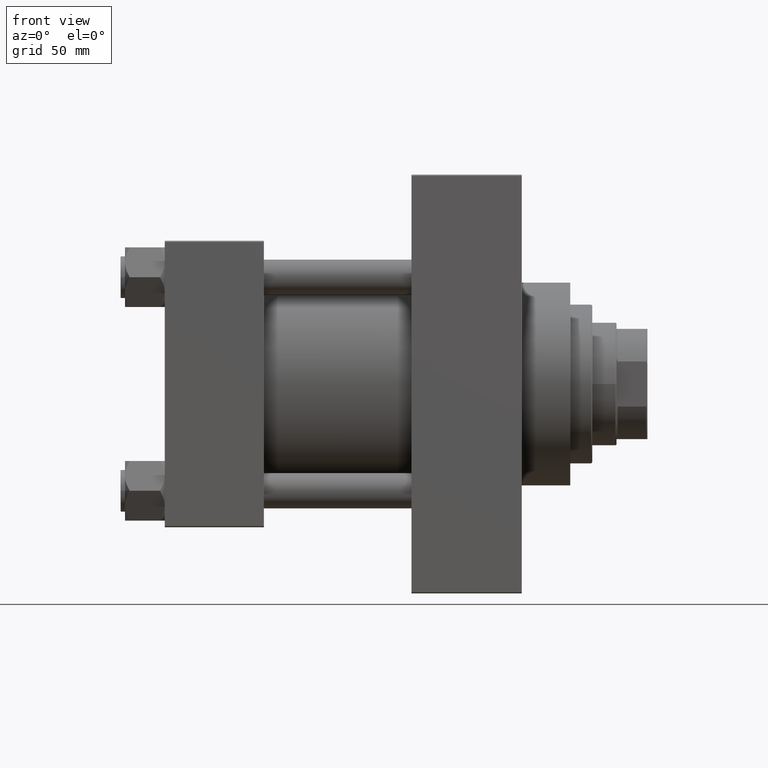
[diagram: clean part render]
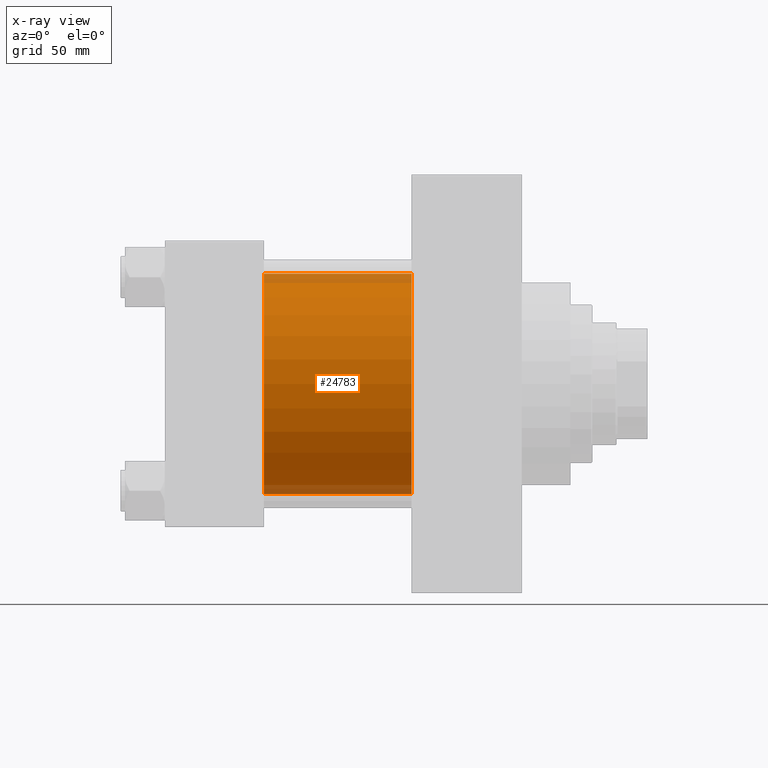
[diagram: x-ray — body ghosted, one internal face saturated and labeled with its STEP entity id]
A machine part, front view, then the same camera in x-ray: the body is ghosted and one INTERNAL B-rep face — a face not visible from any outside direction — is saturated and labeled: STEP entity #24783.
In plain terms, the highlighted cylindrical surface (partial cylindrical patch) has radius 50 mm, axis along (-1, -0, -0).
Its self-contained STEP definition (entity closure, byte-faithful):
#1569 = ORIENTED_EDGE ( 'NONE', *, *, #18115, .T. ) ;
#1667 = FACE_OUTER_BOUND ( 'NONE', #16014, .T. ) ;
#3726 = ORIENTED_EDGE ( 'NONE', *, *, #47730, .F. ) ;
#7072 = EDGE_CURVE ( 'NONE', #35911, #25955, #42579, .T. ) ;
#10651 = DIRECTION ( 'NONE',  ( 0.000000000000000000, 0.000000000000000000, -1.000000000000000000 ) ) ;
#11159 = AXIS2_PLACEMENT_3D ( 'NONE', #19323, #34534, #27525 ) ;
#11374 = DIRECTION ( 'NONE',  ( 1.000000000000000000, 0.000000000000000000, 0.000000000000000000 ) ) ;
#13576 = AXIS2_PLACEMENT_3D ( 'NONE', #21143, #35875, #39969 ) ;
#15604 = AXIS2_PLACEMENT_3D ( 'NONE', #40831, #11374, #10651 ) ;
#16014 = EDGE_LOOP ( 'NONE', ( #31176, #1569, #25933, #3726 ) ) ;
#16772 = CARTESIAN_POINT ( 'NONE',  ( 112.0000000000000000, -2.602085213965210642E-15, 50.00000000000000000 ) ) ;
#18115 = EDGE_CURVE ( 'NONE', #40497, #25955, #31140, .T. ) ;
#19323 = CARTESIAN_POINT ( 'NONE',  ( 112.0000000000000000, -2.602085213965210642E-15, 0.000000000000000000 ) ) ;
#21143 = CARTESIAN_POINT ( 'NONE',  ( 112.0000000000000000, -2.602085213965210642E-15, 0.000000000000000000 ) ) ;
#24154 = CARTESIAN_POINT ( 'NONE',  ( 45.00000000000000000, 3.521148781771555838E-15, -50.00000000000000000 ) ) ;
#24583 = VERTEX_POINT ( 'NONE', #39981 ) ;
#24783 = ADVANCED_FACE ( 'NONE', ( #1667 ), #45137, .F. ) ;
#25933 = ORIENTED_EDGE ( 'NONE', *, *, #7072, .F. ) ;
#25955 = VERTEX_POINT ( 'NONE', #24154 ) ;
#27525 = DIRECTION ( 'NONE',  ( 0.000000000000000000, 0.000000000000000000, 1.000000000000000000 ) ) ;
#28353 = VECTOR ( 'NONE', #36088, 1000.000000000000000 ) ;
#30544 = CIRCLE ( 'NONE', #13576, 50.00000000000000000 ) ;
#30679 = CARTESIAN_POINT ( 'NONE',  ( 112.0000000000000000, 3.521148781771555838E-15, -50.00000000000000000 ) ) ;
#31140 = LINE ( 'NONE', #34995, #37942 ) ;
#31176 = ORIENTED_EDGE ( 'NONE', *, *, #31608, .T. ) ;
#31608 = EDGE_CURVE ( 'NONE', #24583, #40497, #30544, .T. ) ;
#34534 = DIRECTION ( 'NONE',  ( -1.000000000000000000, -0.000000000000000000, -0.000000000000000000 ) ) ;
#34995 = CARTESIAN_POINT ( 'NONE',  ( 112.0000000000000000, 3.521148781771555838E-15, -50.00000000000000000 ) ) ;
#35875 = DIRECTION ( 'NONE',  ( 1.000000000000000000, 0.000000000000000000, 0.000000000000000000 ) ) ;
#35911 = VERTEX_POINT ( 'NONE', #45346 ) ;
#36088 = DIRECTION ( 'NONE',  ( -1.000000000000000000, -0.000000000000000000, -0.000000000000000000 ) ) ;
#37942 = VECTOR ( 'NONE', #45831, 1000.000000000000000 ) ;
#39969 = DIRECTION ( 'NONE',  ( 0.000000000000000000, 0.000000000000000000, -1.000000000000000000 ) ) ;
#39981 = CARTESIAN_POINT ( 'NONE',  ( 112.0000000000000000, -2.602085213965210642E-15, 50.00000000000000000 ) ) ;
#40497 = VERTEX_POINT ( 'NONE', #30679 ) ;
#40831 = CARTESIAN_POINT ( 'NONE',  ( 45.00000000000000000, -2.602085213965210642E-15, 0.000000000000000000 ) ) ;
#42579 = CIRCLE ( 'NONE', #15604, 50.00000000000000000 ) ;
#45137 = CYLINDRICAL_SURFACE ( 'NONE', #11159, 50.00000000000000000 ) ;
#45346 = CARTESIAN_POINT ( 'NONE',  ( 45.00000000000000000, -2.602085213965210642E-15, 50.00000000000000000 ) ) ;
#45831 = DIRECTION ( 'NONE',  ( -1.000000000000000000, -0.000000000000000000, -0.000000000000000000 ) ) ;
#46208 = LINE ( 'NONE', #16772, #28353 ) ;
#47730 = EDGE_CURVE ( 'NONE', #24583, #35911, #46208, .T. ) ;